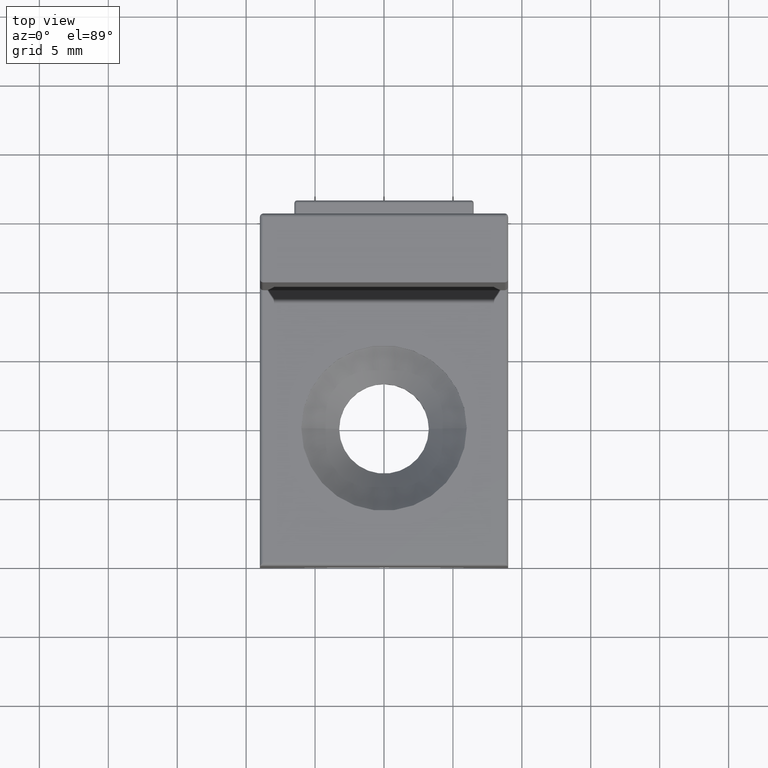
[diagram: clean part render]
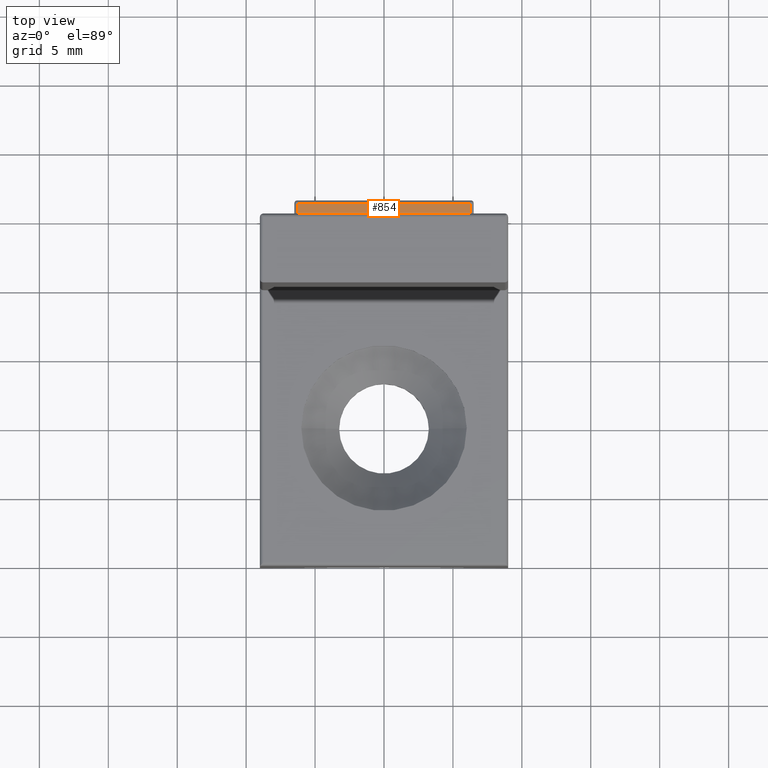
[diagram: same view with one face highlighted and labeled with its STEP entity id]
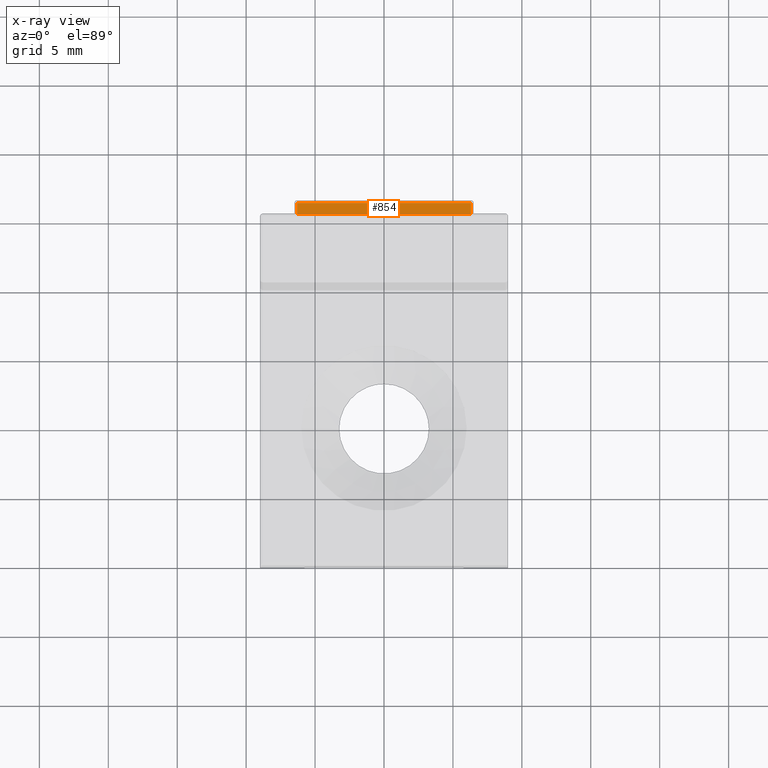
[diagram: x-ray of the same camera — body ghosted, the highlighted face saturated]
A machine part, top view. The second image highlights one B-rep face of the part: STEP entity #854.
The next image is the same camera in x-ray: the body ghosted, the highlighted face saturated — about 0% of this face is hidden behind the body in this view.
In plain terms, the highlighted planar face has unit normal (0, 0, -1).
Its self-contained STEP definition (entity closure, byte-faithful):
#472 = LINE ( 'NONE', #4000, #14229 ) ;
#614 = DIRECTION ( 'NONE',  ( 0.0000000000000000000, -1.000000000000000000, 0.0000000000000000000 ) ) ;
#854 = ADVANCED_FACE ( 'NONE', ( #10837 ), #10783, .F. ) ;
#1054 = VECTOR ( 'NONE', #3083, 1000.000000000000000 ) ;
#1422 = DIRECTION ( 'NONE',  ( -1.000000000000000000, 0.0000000000000000000, -0.0000000000000000000 ) ) ;
#1652 = LINE ( 'NONE', #3870, #13980 ) ;
#2042 = CARTESIAN_POINT ( 'NONE',  ( 6.299999999999995400, 0.0000000000000000000, 37.00000000000000000 ) ) ;
#2601 = VERTEX_POINT ( 'NONE', #11063 ) ;
#2627 = VERTEX_POINT ( 'NONE', #5358 ) ;
#2690 = ORIENTED_EDGE ( 'NONE', *, *, #9040, .T. ) ;
#3083 = DIRECTION ( 'NONE',  ( 1.000000000000000000, 0.0000000000000000000, 0.0000000000000000000 ) ) ;
#3691 = CARTESIAN_POINT ( 'NONE',  ( -6.299999999999999800, 0.8000000000000000400, 37.00000000000000000 ) ) ;
#3870 = CARTESIAN_POINT ( 'NONE',  ( 6.299999999999998900, 1.000000000000000000, 37.00000000000000000 ) ) ;
#4000 = CARTESIAN_POINT ( 'NONE',  ( -6.299999999999999800, 1.000000000000000000, 37.00000000000000000 ) ) ;
#4060 = LINE ( 'NONE', #12121, #1054 ) ;
#4868 = EDGE_CURVE ( 'NONE', #13817, #2601, #1652, .T. ) ;
#5072 = DIRECTION ( 'NONE',  ( -1.000000000000000000, -0.0000000000000000000, -0.0000000000000000000 ) ) ;
#5358 = CARTESIAN_POINT ( 'NONE',  ( -6.299999999999999800, 0.0000000000000000000, 37.00000000000000000 ) ) ;
#7387 = CARTESIAN_POINT ( 'NONE',  ( -6.500000000000000000, 0.8000000000000000400, 37.00000000000000000 ) ) ;
#8487 = ORIENTED_EDGE ( 'NONE', *, *, #13358, .T. ) ;
#8894 = VECTOR ( 'NONE', #5072, 1000.000000000000000 ) ;
#9040 = EDGE_CURVE ( 'NONE', #2627, #13817, #4060, .T. ) ;
#9130 = CARTESIAN_POINT ( 'NONE',  ( -6.500000000000000000, 1.000000000000000000, 37.00000000000000000 ) ) ;
#9150 = ORIENTED_EDGE ( 'NONE', *, *, #9913, .T. ) ;
#9913 = EDGE_CURVE ( 'NONE', #2601, #11386, #9953, .T. ) ;
#9953 = LINE ( 'NONE', #7387, #8894 ) ;
#10783 = PLANE ( 'NONE',  #11007 ) ;
#10837 = FACE_OUTER_BOUND ( 'NONE', #13571, .T. ) ;
#11007 = AXIS2_PLACEMENT_3D ( 'NONE', #9130, #12315, #1422 ) ;
#11063 = CARTESIAN_POINT ( 'NONE',  ( 6.299999999999999800, 0.8000000000000000400, 37.00000000000000000 ) ) ;
#11386 = VERTEX_POINT ( 'NONE', #3691 ) ;
#12121 = CARTESIAN_POINT ( 'NONE',  ( -6.500000000000000000, 0.0000000000000000000, 37.00000000000000000 ) ) ;
#12315 = DIRECTION ( 'NONE',  ( 0.0000000000000000000, 0.0000000000000000000, -1.000000000000000000 ) ) ;
#12600 = ORIENTED_EDGE ( 'NONE', *, *, #4868, .T. ) ;
#12774 = DIRECTION ( 'NONE',  ( -0.0000000000000000000, 1.000000000000000000, -0.0000000000000000000 ) ) ;
#13358 = EDGE_CURVE ( 'NONE', #11386, #2627, #472, .T. ) ;
#13571 = EDGE_LOOP ( 'NONE', ( #9150, #8487, #2690, #12600 ) ) ;
#13817 = VERTEX_POINT ( 'NONE', #2042 ) ;
#13980 = VECTOR ( 'NONE', #12774, 1000.000000000000000 ) ;
#14229 = VECTOR ( 'NONE', #614, 1000.000000000000000 ) ;